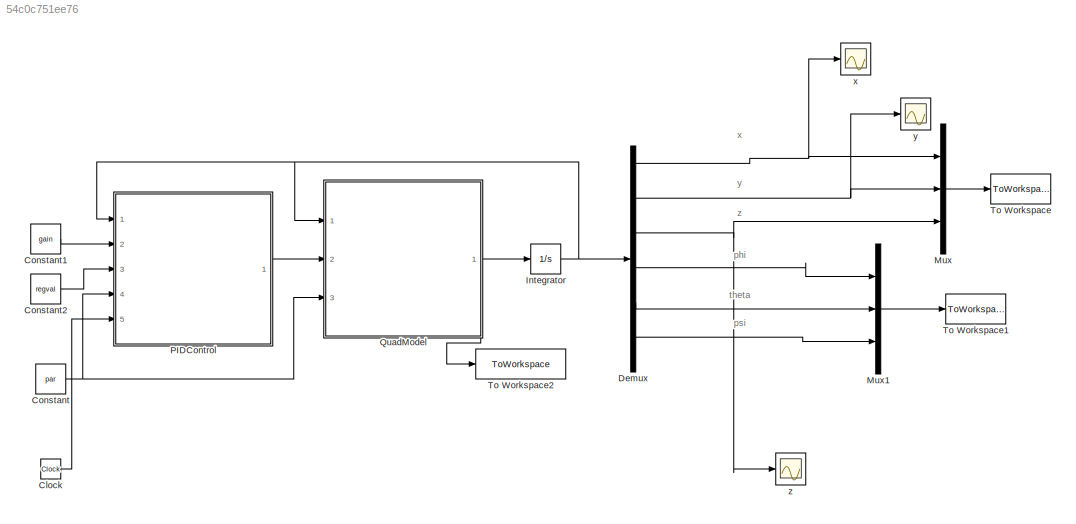
MODEL slx_54c0c751ee76
KIND model
CONFIG AbsTol = auto
CONFIG EnableMultiTasking = on
CONFIG FixedStep = auto
CONFIG MaxStep = auto
CONFIG MinStep = auto
CONFIG RelTol = 1e-3
CONFIG SampleTimeConstraint = Unconstrained
CONFIG SolverName = ode45
CONFIG StartTime = 0.0
CONFIG StopTime = 50
BLOCK [Clock] Clock
BLOCK [Constant] Constant
  Value = par
BLOCK [Constant] Constant1
  Value = gain
BLOCK [Constant] Constant2
  Value = regval
BLOCK [Demux] Demux
  Outputs = 12
  Ports = [1, 12]
BLOCK [Integrator] Integrator
  InitialCondition = initialCondition
  Ports = [1, 1]
BLOCK [Mux] Mux
  DisplayOption = bar
  Inputs = 3
  Ports = [3, 1]
BLOCK [Mux] Mux1
  DisplayOption = bar
  Inputs = 3
  Ports = [3, 1]
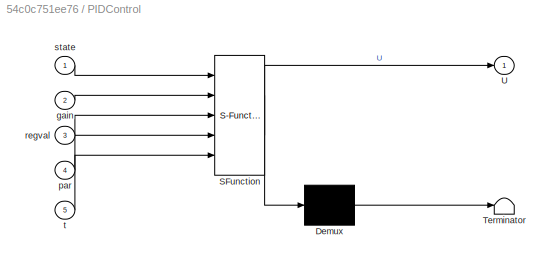
BLOCK [SubSystem] PIDControl 
  ErrorFcn = Stateflow.Translate.translate
  PermitHierarchicalResolution = ExplicitOnly
  Ports = [5, 1]
  RequestExecContextInheritance = off
  SFBlockType = MATLAB Function
  TreatAsAtomicUnit = on
BLOCK [Demux] PIDControl / Demux 
  Outputs = 1
  Ports = [1, 1]
BLOCK [S-Function] PIDControl / SFunction 
  EnableBusSupport = on
  FunctionName = sf_sfun
  PortCounts = [5 2]
  Ports = [5, 2]
  SFcnIsStateOwnerBlock = off
  SFunctionDeploymentMode = off
  Tag = Stateflow S-Function 1
BLOCK [Terminator] PIDControl / Terminator 
BLOCK [Outport] PIDControl /U
  VectorParamsAs1DForOutWhenUnconnected = off
BLOCK [Inport] PIDControl /gain
  Port = 2
BLOCK [Inport] PIDControl /par
  Port = 4
BLOCK [Inport] PIDControl /regval
  Port = 3
BLOCK [Inport] PIDControl /state
BLOCK [Inport] PIDControl /t
  Port = 5
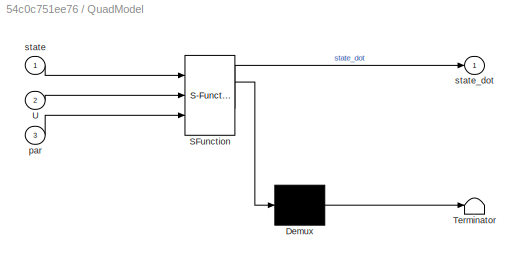
BLOCK [SubSystem] QuadModel
  ErrorFcn = Stateflow.Translate.translate
  PermitHierarchicalResolution = ExplicitOnly
  Ports = [3, 1]
  RequestExecContextInheritance = off
  SFBlockType = MATLAB Function
  TreatAsAtomicUnit = on
BLOCK [Demux] QuadModel/ Demux 
  Outputs = 1
  Ports = [1, 1]
BLOCK [S-Function] QuadModel/ SFunction 
  EnableBusSupport = on
  FunctionName = sf_sfun
  PortCounts = [3 2]
  Ports = [3, 2]
  SFcnIsStateOwnerBlock = off
  SFunctionDeploymentMode = off
  Tag = Stateflow S-Function 2
BLOCK [Terminator] QuadModel/ Terminator 
BLOCK [Inport] QuadModel/U
  Port = 2
BLOCK [Inport] QuadModel/par
  Port = 3
BLOCK [Inport] QuadModel/state
BLOCK [Outport] QuadModel/state_dot
  VectorParamsAs1DForOutWhenUnconnected = off
BLOCK [ToWorkspace] To Workspace
  FixptAsFi = on
  MaxDataPoints = inf
  Ports = [1]
  SampleTime = -1
  SaveFormat = Structure With Time
  VariableName = Position
BLOCK [ToWorkspace] To Workspace1
  FixptAsFi = on
  MaxDataPoints = inf
  Ports = [1]
  SampleTime = -1
  SaveFormat = Structure With Time
  VariableName = Attitude
BLOCK [ToWorkspace] To Workspace2
  FixptAsFi = on
  MaxDataPoints = inf
  Ports = [1]
  SampleTime = -1
  SaveFormat = Timeseries
  VariableName = state_dot
BLOCK [Scope] x
  Floating = off
  NumInputPorts = 1
  Ports = [1]
  ScopeSpecificationString = Simulink.scopes.TimeScopeBlockCfg('CurrentConfiguration', extmgr.ConfigurationSet(extmgr.Configuration('Core','General UI',true),extmgr.Configuration('Core','Source UI',true),extmgr.Configuration('Sources','WiredSimulink',true,'DataLoggingSaveFormat','StructureWithTime','DataLoggingLimitDataPoints',true,'DataLoggingDecimation','1','DataLoggingDecimateData',true,'DataLoggingVariableName','ScopeData...<+1698ch>
BLOCK [Scope] y 
  Floating = off
  NumInputPorts = 1
  Ports = [1]
  ScopeSpecificationString = Simulink.scopes.TimeScopeBlockCfg('CurrentConfiguration', extmgr.ConfigurationSet(extmgr.Configuration('Core','General UI',true),extmgr.Configuration('Core','Source UI',true),extmgr.Configuration('Sources','WiredSimulink',true,'DataLoggingSaveFormat','StructureWithTime','DataLoggingLimitDataPoints',true,'DataLoggingDecimation','1','DataLoggingDecimateData',true,'DataLoggingVariableName','ScopeData...<+1699ch>
BLOCK [Scope] z
  Floating = off
  NumInputPorts = 1
  Ports = [1]
  ScopeSpecificationString = Simulink.scopes.TimeScopeBlockCfg('CurrentConfiguration', extmgr.ConfigurationSet(extmgr.Configuration('Core','General UI',true),extmgr.Configuration('Core','Source UI',true),extmgr.Configuration('Sources','WiredSimulink',true,'DataLoggingSaveFormat','StructureWithTime','DataLoggingLimitDataPoints',true,'DataLoggingDecimation','1','DataLoggingDecimateData',true),extmgr.Configuration('Visuals','Tim...<+1627ch>
ANNOTATION (root): phi
ANNOTATION (root): psi
ANNOTATION (root): theta
ANNOTATION (root): x
ANNOTATION (root): y
ANNOTATION (root): z
LINE Clock:1 -> PIDControl :5
LINE Constant1:1 -> PIDControl :2
LINE Constant2:1 -> PIDControl :3
NET Constant:1 -> PIDControl :4, QuadModel:3
NET Demux:1 -> Mux:1, x:1
LINE Demux:11 -> Mux1:3
NET Demux:3 -> Mux:2, y :1
NET Demux:5 -> Mux:3, z:1
LINE Demux:7 -> Mux1:1
LINE Demux:9 -> Mux1:2
NET Integrator:1 -> Demux:1, PIDControl :1, QuadModel:1
LINE Mux1:1 -> To Workspace1:1
LINE Mux:1 -> To Workspace:1
LINE PIDControl :1 -> QuadModel:2
NET QuadModel:1 -> Integrator:1, To Workspace2:1
note: NET lines group one-source signal fan-out (src -> all destinations, sorted); 1:1 wires keep LINE
CHART PIDControl
 states=1 transitions=1
  STATE_LABEL 'eML_blk_kernel()'
  STATE_LABEL 'SCRIPT:\nfunction U = PID_C(state,gain,regval,par,t)\n\n%model parameters\nm=par(1);\nm1=par(2);\nIx=par(3);\nIy=par(4);\nIz=par(5);\nIr=par(6);\nOm_r=par(7);\nd=par(8);\nl=par(9);\ng=par(10);\n\n%controller gains\nkx=gain(1);\nkx_d=gain(2);\nkx_i=gain(3);\n\nky=gain(4);\nky_d=gain(5);\nky_i=gain(6);\n\nkz=gain(7);\nkz_d=gain(8);\nkz_i=gain(9);\n\nk_phi=gain(10);\nkphi_d=gain(11);\nkphi_i=gain(12);\n\nk_theta=gain(13);\nktheta_d=...<+1233ch>'
CHART QuadModel states=1 transitions=1
  STATE_LABEL 'eML_blk_kernel()'
  STATE_LABEL 'SCRIPT:\nfunction state_dot = quadrotor_model(state,U,par)\n\n%model parameters\nm=par(1);\nm1=par(2);\nIx=par(3);\nIy=par(4);\nIz=par(5);\nIr=par(6);\nOm_r=par(7);\nd=par(8);\nl=par(9);\ng=par(10);\n\n%position\nx=state(1);\nvx=state(2);\ny=state(3);\nvy=state(4);\nz=state(5);\nvz=state(6);\n\n%attitude\nphi=state(7);\ndphi=state(8);\ntheta=state(9);\ndtheta=state(10);\npsi=state(11);\ndpsi=state(12);\n\n%control\nT=U(1);\ntau_p...<+832ch>'
CHART  states=0 transitions=0
CHART  states=0 transitions=0
